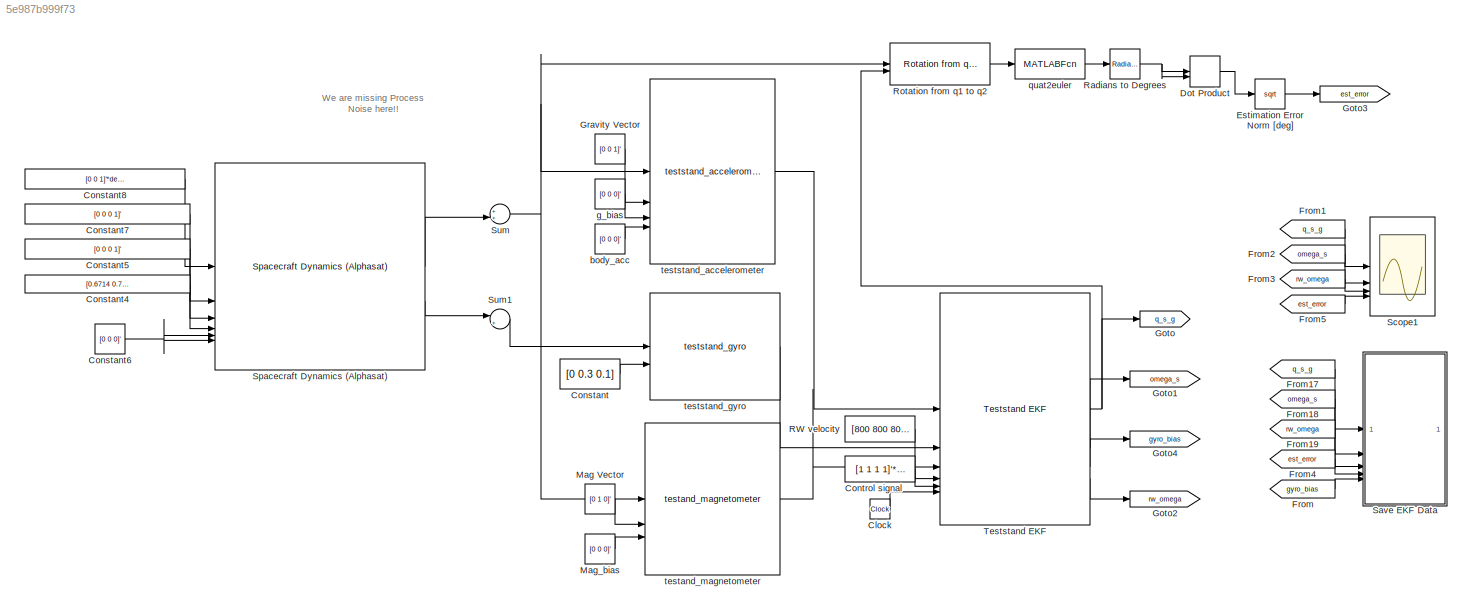
MODEL slx_5e987b999f73
KIND model
CONFIG AbsTol = auto
CONFIG EnableMultiTasking = on
CONFIG FixedStep = auto
CONFIG MaxStep = auto
CONFIG MinStep = auto
CONFIG RelTol = 1e-3
CONFIG SampleTimeConstraint = Unconstrained
CONFIG SolverName = VariableStepAuto
CONFIG StartTime = 0.0
CONFIG StopTime = 3000
BLOCK [Clock] Clock
BLOCK [Constant] Constant
  Value = [0 0.3 0.1]
BLOCK [Constant] Constant4
  Value = [0.6714 0.7044 0.7268]*1e-3
BLOCK [Constant] Constant5
  Value = [0 0 0 1]'
BLOCK [Constant] Constant6
  Value = [0 0 0]'
BLOCK [Constant] Constant7
  Value = [0 0 0 1]'
BLOCK [Constant] Constant8
  Value = [0 0 1]'*deg2rad(0.3)
BLOCK [Constant] Control signal
  Value = [1 1 1 1]'*3.3/2
BLOCK [DotProduct] Dot Product
  OutDataTypeStr = Inherit: Inherit via internal rule
BLOCK [Sqrt] Estimation Error Norm [deg]
BLOCK [From] From
  GotoTag = gyro_bias
BLOCK [From] From1
  GotoTag = q_s_g
BLOCK [From] From17
  GotoTag = q_s_g
BLOCK [From] From18
  GotoTag = omega_s
BLOCK [From] From19
  GotoTag = rw_omega
BLOCK [From] From2
  GotoTag = omega_s
BLOCK [From] From3
  GotoTag = rw_omega
BLOCK [From] From4
  GotoTag = est_error
BLOCK [From] From5
  GotoTag = est_error
BLOCK [Goto] Goto
  GotoTag = q_s_g
BLOCK [Goto] Goto1
  GotoTag = omega_s
BLOCK [Goto] Goto2
  GotoTag = rw_omega
BLOCK [Goto] Goto3
  GotoTag = est_error
BLOCK [Goto] Goto4
  GotoTag = gyro_bias
BLOCK [Constant] Gravity Vector
  Value = [0 0 1]'
  VectorParams1D = off
BLOCK [Constant] Mag Vector
  Value = [0 1 0]'
  VectorParams1D = off
BLOCK [Constant] Mag_bias
  Value = [0 0 0]'
BLOCK [Constant] RW velocity
  Value = [800 800 800 800]'
BLOCK [Reference] Radians to Degrees  REF=simulink_extras/Transformations/Radians
to Degrees
  SourceBlock = simulink_extras/Transformations/Radians\nto Degrees
  SourceType = RadiansToDegrees
BLOCK [Reference] Rotation from q1 to q2  REF=aausat3_lib/Math Utilities/Quaternion operations/Rotation from q1 to q2  (lib defined in mdl_4157f6465749, slx_d9305f96731e)
  SourceBlock = aausat3_lib/Math Utilities/Quaternion operations/Rotation from q1 to q2
  SourceProductName = AAUSAT3
  SourceType = SubSystem
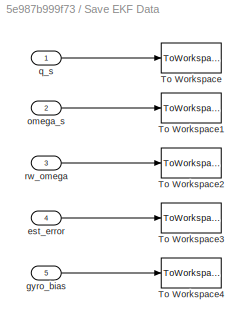
BLOCK [SubSystem] Save EKF Data
BLOCK [ToWorkspace] Save EKF Data/To Workspace
  FixptAsFi = on
  MaxDataPoints = inf
  SampleTime = 1
  SaveFormat = Timeseries
  VariableName = ekf_q_s
BLOCK [ToWorkspace] Save EKF Data/To Workspace1
  FixptAsFi = on
  MaxDataPoints = inf
  SampleTime = 1
  SaveFormat = Timeseries
  VariableName = ekf_omega_s
BLOCK [ToWorkspace] Save EKF Data/To Workspace2
  FixptAsFi = on
  MaxDataPoints = inf
  SampleTime = 1
  SaveFormat = Timeseries
  VariableName = ekf_omega_rw
BLOCK [ToWorkspace] Save EKF Data/To Workspace3
  FixptAsFi = on
  MaxDataPoints = inf
  SampleTime = 1
  SaveFormat = Timeseries
  VariableName = ekf_est_error
BLOCK [ToWorkspace] Save EKF Data/To Workspace4
  FixptAsFi = on
  MaxDataPoints = inf
  SampleTime = 1
  SaveFormat = Timeseries
  VariableName = ekf_gyro_bias
BLOCK [Inport] Save EKF Data/est_error
  Port = 4
BLOCK [Inport] Save EKF Data/gyro_bias
  Port = 5
BLOCK [Inport] Save EKF Data/omega_s
  Port = 2
BLOCK [Inport] Save EKF Data/q_s
BLOCK [Inport] Save EKF Data/rw_omega
  Port = 3
BLOCK [Scope] Scope1
  Floating = off
  NumInputPorts = 4
  ScopeSpecificationString = Simulink.scopes.TimeScopeBlockCfg('CurrentConfiguration', extmgr.ConfigurationSet(extmgr.Configuration('Core','General UI',true),extmgr.Configuration('Core','Source UI',true),extmgr.Configuration('Sources','WiredSimulink',true,'DataLoggingVariableName','ScopeData1'),extmgr.Configuration('Visuals','Time Domain',true,'SerializedDisplays',{struct('MinYLimReal','-1.24999','MaxYLimReal','1.25','YLabelR...<+3650ch>
BLOCK [Reference] Spacecraft Dynamics (Alphasat)  REF=aausat3_lib/Dynamics and Kinematics/Spacecraft Dynamics (Alphasat)  (lib defined in mdl_4157f6465749, slx_d9305f96731e)
  SourceBlock = aausat3_lib/Dynamics and Kinematics/Spacecraft Dynamics (Alphasat)
  SourceProductName = AAUSAT3
  SourceType = SubSystem
BLOCK [Sum] Sum
  Inputs = ++|
BLOCK [Sum] Sum1
  Inputs = |++
BLOCK [Reference] Teststand EKF  REF=aausat3_lib/ADS/Teststand EKF  (lib defined in mdl_4157f6465749, slx_d9305f96731e)
  SourceBlock = aausat3_lib/ADS/Teststand EKF
  SourceProductName = AAUSAT3
BLOCK [Constant] body_acc
  Value = [0 0 0]'
BLOCK [Constant] g_bias
  Value = [0 0 0]'
BLOCK [MATLABFcn] quat2euler
  MATLABFcn = quat2eul([u(4),u(1),u(2),u(3)],'ZYX')
BLOCK [Reference] testand_magnetometer  REF=aausat3_lib/Sensor Emulation/testand_magnetometer  (lib defined in mdl_4157f6465749, slx_d9305f96731e)
  SourceBlock = aausat3_lib/Sensor Emulation/testand_magnetometer
  SourceProductName = AAUSAT3
BLOCK [Reference] teststand_accelerometer  REF=aausat3_lib/Sensor Emulation/teststand_accelerometer  (lib defined in mdl_4157f6465749, slx_d9305f96731e)
  SourceBlock = aausat3_lib/Sensor Emulation/teststand_accelerometer
  SourceProductName = AAUSAT3
BLOCK [Reference] teststand_gyro  REF=aausat3_lib/Sensor Emulation/teststand_gyro  (lib defined in mdl_4157f6465749, slx_d9305f96731e)
  SourceBlock = aausat3_lib/Sensor Emulation/teststand_gyro
  SourceProductName = AAUSAT3
ANNOTATION (root): We are missing Process Noise here!!
LINE Clock:1 -> Teststand EKF:6
LINE Constant4:1 -> Spacecraft Dynamics (Alphasat):4
LINE Constant5:1 -> Spacecraft Dynamics (Alphasat):3
NET Constant6:1 -> Spacecraft Dynamics (Alphasat):5, Spacecraft Dynamics (Alphasat):6
LINE Constant7:1 -> Spacecraft Dynamics (Alphasat):2
LINE Constant8:1 -> Spacecraft Dynamics (Alphasat):1
LINE Constant:1 -> teststand_gyro:2
LINE Control signal:1 -> Teststand EKF:5
LINE Dot Product:1 -> Estimation Error Norm [deg]:1
LINE Estimation Error Norm [deg]:1 -> Goto3:1
LINE From17:1 -> Save EKF Data:1
LINE From18:1 -> Save EKF Data:2
LINE From19:1 -> Save EKF Data:3
LINE From1:1 -> Scope1:1
LINE From2:1 -> Scope1:2
LINE From3:1 -> Scope1:3
LINE From4:1 -> Save EKF Data:4
LINE From5:1 -> Scope1:4
LINE From:1 -> Save EKF Data:5
LINE Gravity Vector:1 -> teststand_accelerometer:2
LINE Mag Vector:1 -> testand_magnetometer:2
LINE Mag_bias:1 -> testand_magnetometer:3
LINE RW velocity:1 -> Teststand EKF:4
NET Radians to Degrees:1 -> Dot Product:1, Dot Product:2
LINE Rotation from q1 to q2:1 -> quat2euler:1
LINE Save EKF Data/est_error:1 -> Save EKF Data/To Workspace3:1
LINE Save EKF Data/gyro_bias:1 -> Save EKF Data/To Workspace4:1
LINE Save EKF Data/omega_s:1 -> Save EKF Data/To Workspace1:1
LINE Save EKF Data/q_s:1 -> Save EKF Data/To Workspace:1
LINE Save EKF Data/rw_omega:1 -> Save EKF Data/To Workspace2:1
LINE Spacecraft Dynamics (Alphasat):1 -> Sum:2
LINE Spacecraft Dynamics (Alphasat):2 -> Sum1:1
LINE Sum1:1 -> teststand_gyro:1
NET Sum:1 -> Rotation from q1 to q2:1, testand_magnetometer:1, teststand_accelerometer:1
NET Teststand EKF:1 -> Goto:1, Rotation from q1 to q2:2
LINE Teststand EKF:2 -> Goto1:1
LINE Teststand EKF:3 -> Goto4:1
LINE Teststand EKF:4 -> Goto2:1
LINE body_acc:1 -> teststand_accelerometer:4
LINE g_bias:1 -> teststand_accelerometer:3
LINE quat2euler:1 -> Radians to Degrees:1
LINE testand_magnetometer:1 -> Teststand EKF:3
LINE teststand_accelerometer:1 -> Teststand EKF:1
LINE teststand_gyro:1 -> Teststand EKF:2
note: NET lines group one-source signal fan-out (src -> all destinations, sorted); 1:1 wires keep LINE
